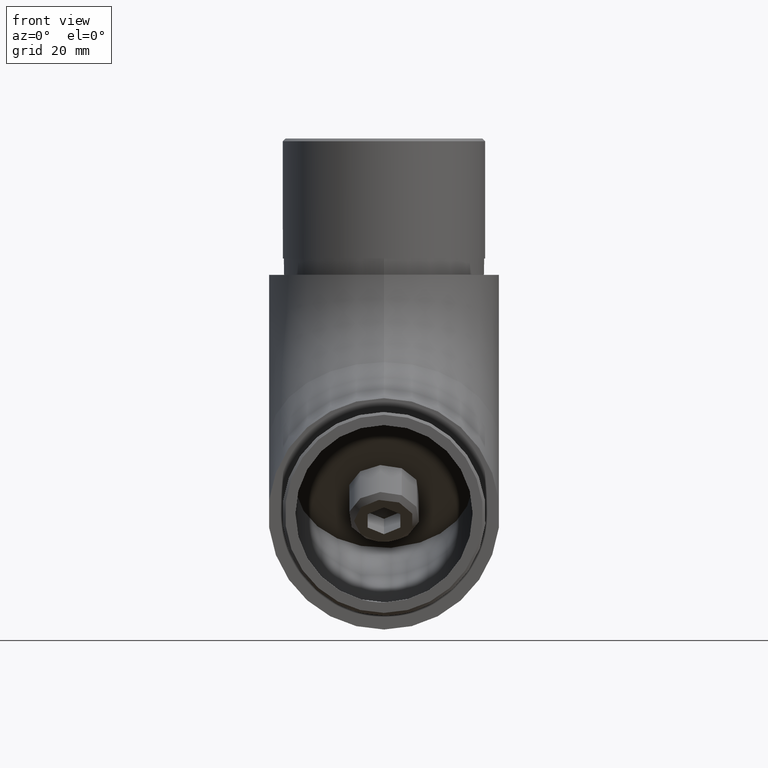
[diagram: clean part render]
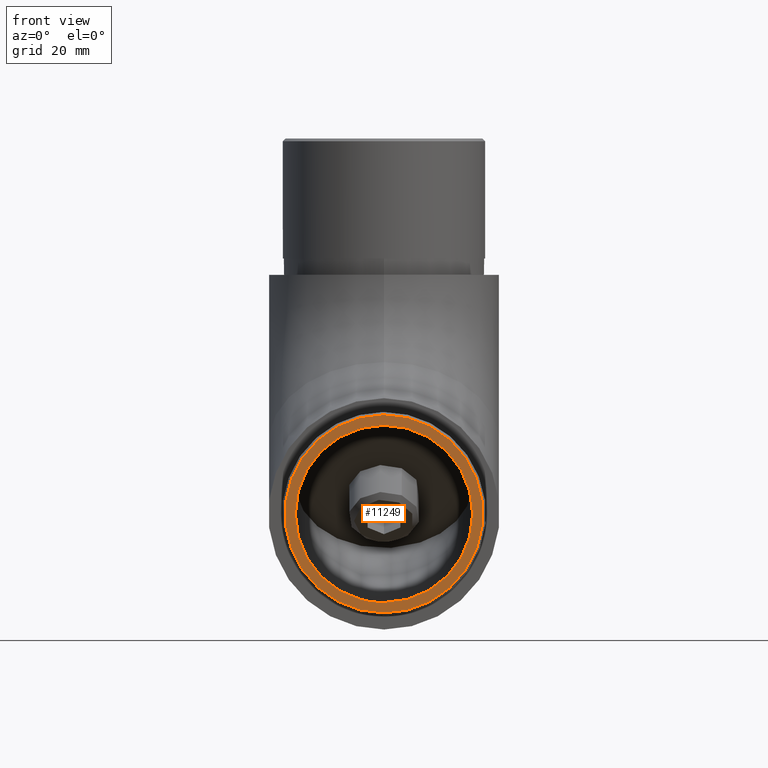
[diagram: same view with one face highlighted and labeled with its STEP entity id]
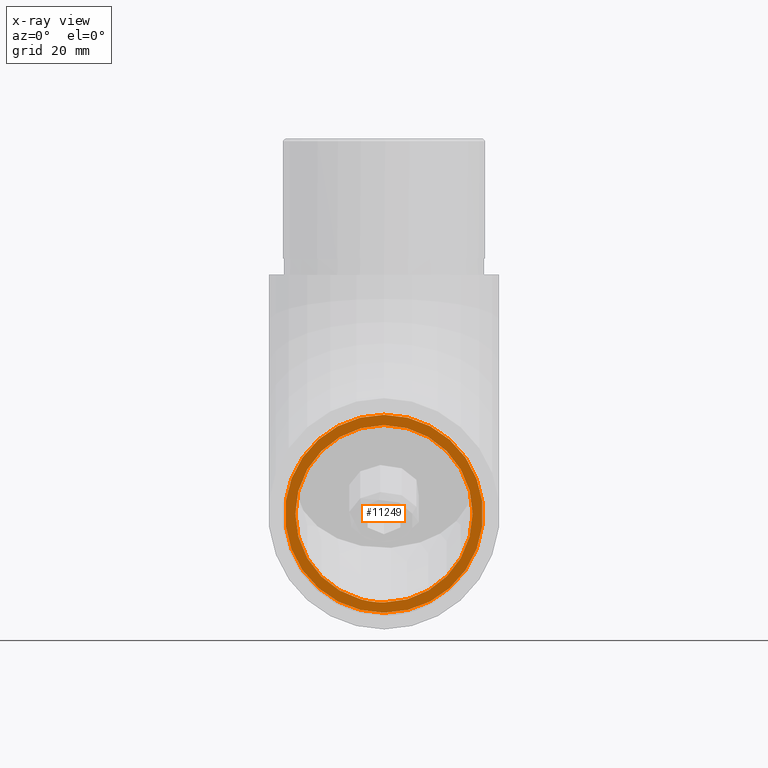
[diagram: x-ray of the same camera — body ghosted, the highlighted face saturated]
A machine part, front view. The second image highlights one B-rep face of the part: STEP entity #11249.
The next image is the same camera in x-ray: the body ghosted, the highlighted face saturated — about 0% of this face is hidden behind the body in this view.
In plain terms, the highlighted planar face has unit normal (0, -1, 0).
Its self-contained STEP definition (entity closure, byte-faithful):
#218 = DIRECTION ( 'NONE',  ( 0.0000000000000000000, 0.0000000000000000000, -1.000000000000000000 ) ) ;
#423 = VERTEX_POINT ( 'NONE', #10423 ) ;
#769 = ORIENTED_EDGE ( 'NONE', *, *, #17717, .T. ) ;
#1779 = EDGE_LOOP ( 'NONE', ( #3177 ) ) ;
#3177 = ORIENTED_EDGE ( 'NONE', *, *, #6137, .F. ) ;
#3624 = DIRECTION ( 'NONE',  ( 0.0000000000000000000, -1.000000000000000000, 0.0000000000000000000 ) ) ;
#4243 = CIRCLE ( 'NONE', #11018, 18.15000000000001300 ) ;
#5785 = CARTESIAN_POINT ( 'NONE',  ( 0.0000000000000000000, -24.99999999999999600, 0.0000000000000000000 ) ) ;
#6118 = PLANE ( 'NONE',  #15642 ) ;
#6137 = EDGE_CURVE ( 'NONE', #423, #423, #6983, .T. ) ;
#6983 = CIRCLE ( 'NONE', #14683, 16.25000000000000000 ) ;
#7936 = DIRECTION ( 'NONE',  ( 0.0000000000000000000, 0.0000000000000000000, -1.000000000000000000 ) ) ;
#9226 = DIRECTION ( 'NONE',  ( 0.0000000000000000000, -0.0000000000000000000, -1.000000000000000000 ) ) ;
#9462 = FACE_BOUND ( 'NONE', #1779, .T. ) ;
#10423 = CARTESIAN_POINT ( 'NONE',  ( 0.0000000000000000000, -24.99999999999999600, -16.25000000000000000 ) ) ;
#10689 = VERTEX_POINT ( 'NONE', #17351 ) ;
#10841 = EDGE_LOOP ( 'NONE', ( #769 ) ) ;
#11018 = AXIS2_PLACEMENT_3D ( 'NONE', #12349, #16227, #7936 ) ;
#11215 = DIRECTION ( 'NONE',  ( 0.0000000000000000000, -1.000000000000000000, 0.0000000000000000000 ) ) ;
#11249 = ADVANCED_FACE ( 'NONE', ( #13162, #9462 ), #6118, .T. ) ;
#12349 = CARTESIAN_POINT ( 'NONE',  ( 0.0000000000000000000, -24.99999999999999600, 0.0000000000000000000 ) ) ;
#13162 = FACE_OUTER_BOUND ( 'NONE', #10841, .T. ) ;
#14683 = AXIS2_PLACEMENT_3D ( 'NONE', #5785, #11215, #218 ) ;
#15642 = AXIS2_PLACEMENT_3D ( 'NONE', #16158, #3624, #9226 ) ;
#16158 = CARTESIAN_POINT ( 'NONE',  ( 0.0000000000000000000, -24.99999999999999600, 0.0000000000000000000 ) ) ;
#16227 = DIRECTION ( 'NONE',  ( 0.0000000000000000000, -1.000000000000000000, 0.0000000000000000000 ) ) ;
#17351 = CARTESIAN_POINT ( 'NONE',  ( 0.0000000000000000000, -24.99999999999999600, -18.15000000000001300 ) ) ;
#17717 = EDGE_CURVE ( 'NONE', #10689, #10689, #4243, .T. ) ;